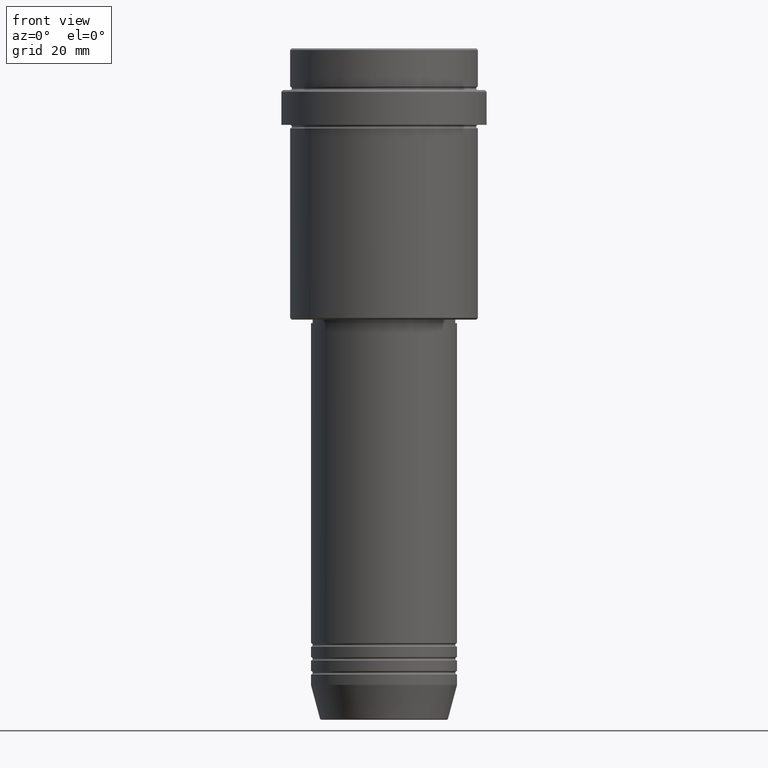
[diagram: clean part render]
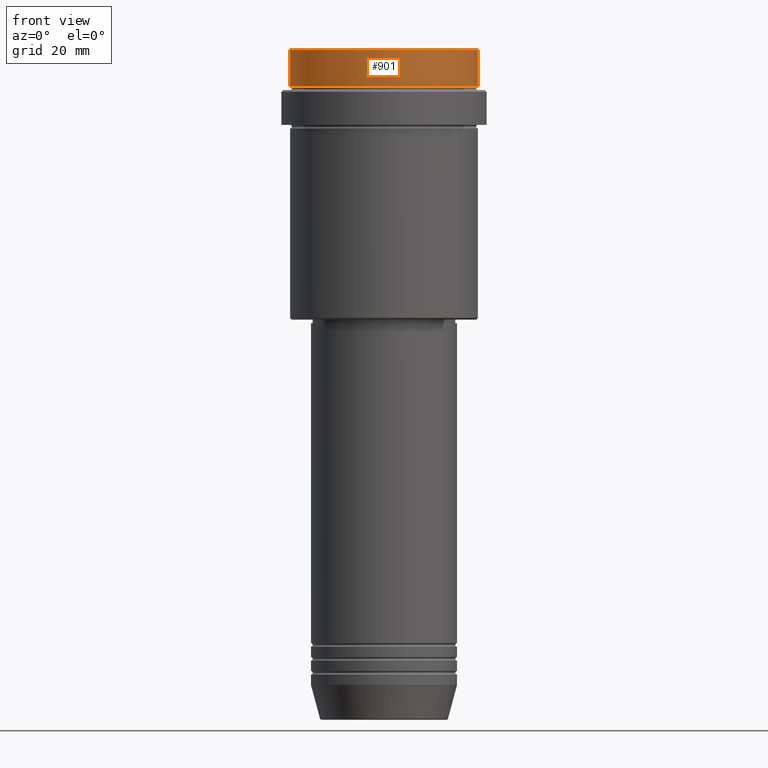
[diagram: same view with one face highlighted and labeled with its STEP entity id]
A machine part, front view. The second image highlights one B-rep face of the part: STEP entity #901.
In plain terms, the highlighted cylindrical surface (partial cylindrical patch) has radius 27 mm, axis along (-0, -0, 1).
Its self-contained STEP definition (entity closure, byte-faithful):
#27 = CARTESIAN_POINT ( 'NONE',  ( 27.00000000000000355, 0.000000000000000000, -11.00000000000000178 ) ) ;
#30 = LINE ( 'NONE', #913, #119 ) ;
#37 = DIRECTION ( 'NONE',  ( -0.000000000000000000, -0.000000000000000000, 1.000000000000000000 ) ) ;
#111 = DIRECTION ( 'NONE',  ( 1.000000000000000000, 0.000000000000000000, 0.000000000000000000 ) ) ;
#119 = VECTOR ( 'NONE', #37, 1000.000000000000000 ) ;
#146 = DIRECTION ( 'NONE',  ( 1.000000000000000000, 0.000000000000000000, 0.000000000000000000 ) ) ;
#177 = CIRCLE ( 'NONE', #222, 27.00000000000000355 ) ;
#189 = ORIENTED_EDGE ( 'NONE', *, *, #835, .T. ) ;
#222 = AXIS2_PLACEMENT_3D ( 'NONE', #233, #549, #1000 ) ;
#233 = CARTESIAN_POINT ( 'NONE',  ( 0.000000000000000000, 0.000000000000000000, -0.4999999999999796274 ) ) ;
#242 = CARTESIAN_POINT ( 'NONE',  ( -27.00000000000000355, 3.306546357697854128E-15, -0.4999999999999796274 ) ) ;
#266 = ORIENTED_EDGE ( 'NONE', *, *, #1114, .F. ) ;
#287 = DIRECTION ( 'NONE',  ( -0.000000000000000000, -0.000000000000000000, 1.000000000000000000 ) ) ;
#308 = AXIS2_PLACEMENT_3D ( 'NONE', #686, #562, #146 ) ;
#350 = EDGE_CURVE ( 'NONE', #1181, #878, #177, .T. ) ;
#488 = ORIENTED_EDGE ( 'NONE', *, *, #939, .T. ) ;
#534 = CARTESIAN_POINT ( 'NONE',  ( -27.00000000000000355, 3.306546357697854128E-15, -11.00000000000000178 ) ) ;
#549 = DIRECTION ( 'NONE',  ( 0.000000000000000000, 0.000000000000000000, -1.000000000000000000 ) ) ;
#559 = CIRCLE ( 'NONE', #856, 27.00000000000000355 ) ;
#562 = DIRECTION ( 'NONE',  ( -0.000000000000000000, -0.000000000000000000, 1.000000000000000000 ) ) ;
#591 = CARTESIAN_POINT ( 'NONE',  ( -27.00000000000000355, 3.306546357697854128E-15, 0.000000000000000000 ) ) ;
#659 = CARTESIAN_POINT ( 'NONE',  ( 0.000000000000000000, 0.000000000000000000, -11.00000000000000178 ) ) ;
#686 = CARTESIAN_POINT ( 'NONE',  ( 0.000000000000000000, 0.000000000000000000, 0.000000000000000000 ) ) ;
#748 = EDGE_LOOP ( 'NONE', ( #266, #189, #488, #760 ) ) ;
#760 = ORIENTED_EDGE ( 'NONE', *, *, #350, .T. ) ;
#790 = CYLINDRICAL_SURFACE ( 'NONE', #308, 27.00000000000000355 ) ;
#809 = LINE ( 'NONE', #591, #1053 ) ;
#835 = EDGE_CURVE ( 'NONE', #841, #1359, #559, .T. ) ;
#841 = VERTEX_POINT ( 'NONE', #534 ) ;
#856 = AXIS2_PLACEMENT_3D ( 'NONE', #659, #1113, #111 ) ;
#878 = VERTEX_POINT ( 'NONE', #242 ) ;
#901 = ADVANCED_FACE ( 'NONE', ( #1134 ), #790, .T. ) ;
#913 = CARTESIAN_POINT ( 'NONE',  ( 27.00000000000000355, 0.000000000000000000, 0.000000000000000000 ) ) ;
#939 = EDGE_CURVE ( 'NONE', #1359, #1181, #30, .T. ) ;
#1000 = DIRECTION ( 'NONE',  ( 1.000000000000000000, 0.000000000000000000, 0.000000000000000000 ) ) ;
#1053 = VECTOR ( 'NONE', #287, 1000.000000000000000 ) ;
#1113 = DIRECTION ( 'NONE',  ( -0.000000000000000000, -0.000000000000000000, 1.000000000000000000 ) ) ;
#1114 = EDGE_CURVE ( 'NONE', #841, #878, #809, .T. ) ;
#1134 = FACE_OUTER_BOUND ( 'NONE', #748, .T. ) ;
#1181 = VERTEX_POINT ( 'NONE', #1188 ) ;
#1188 = CARTESIAN_POINT ( 'NONE',  ( 27.00000000000000355, 0.000000000000000000, -0.4999999999999796274 ) ) ;
#1359 = VERTEX_POINT ( 'NONE', #27 ) ;